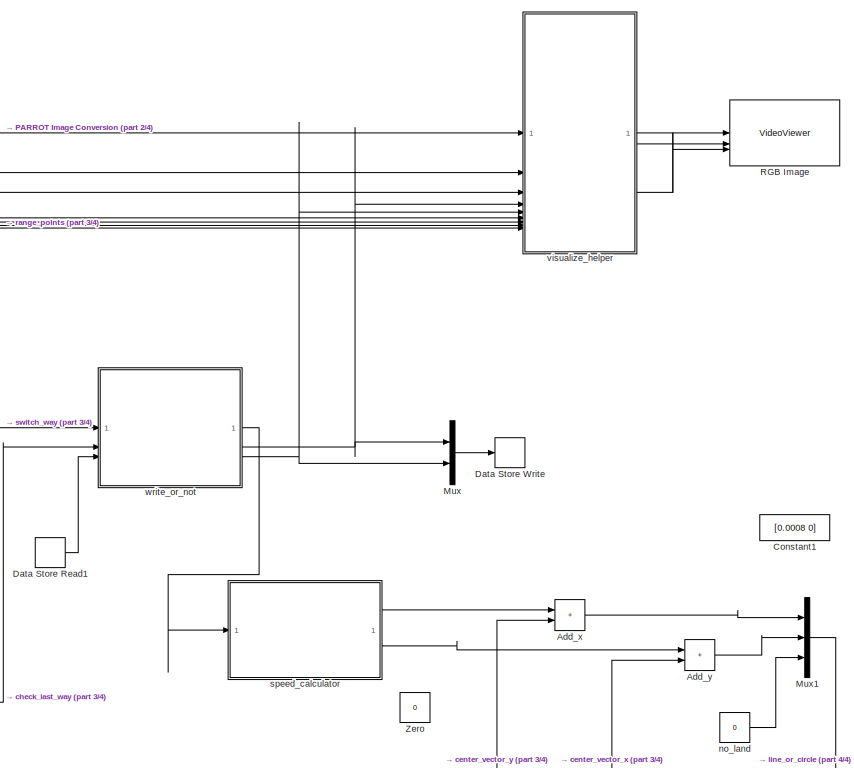
[diagram: root canvas - part 1/4, middle right region]
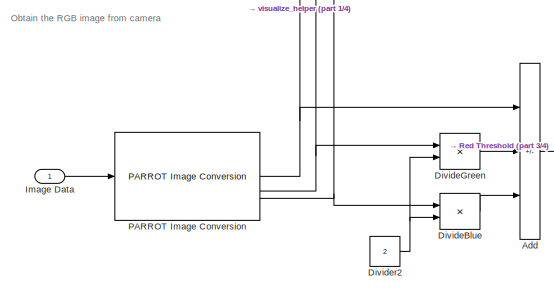
[diagram: root canvas - part 2/4, middle left region]
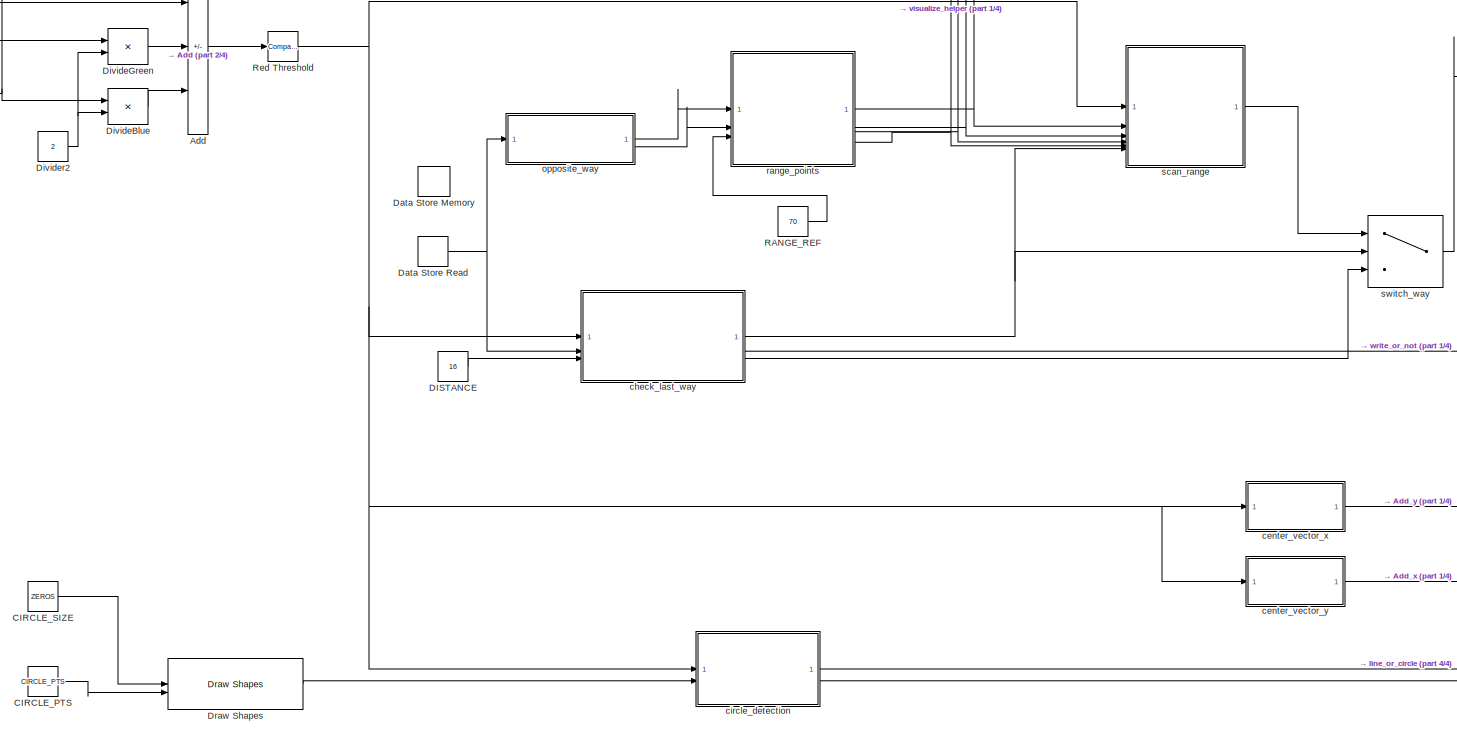
[diagram: root canvas - part 3/4, central region]
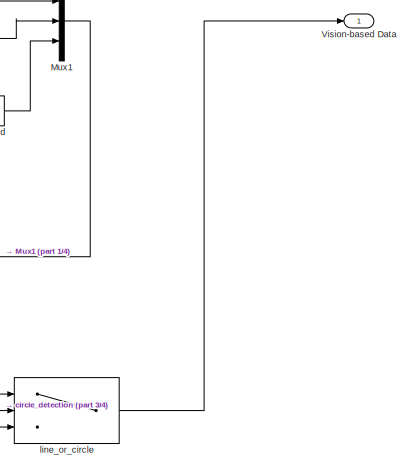
[diagram: root canvas - part 4/4, bottom right region]
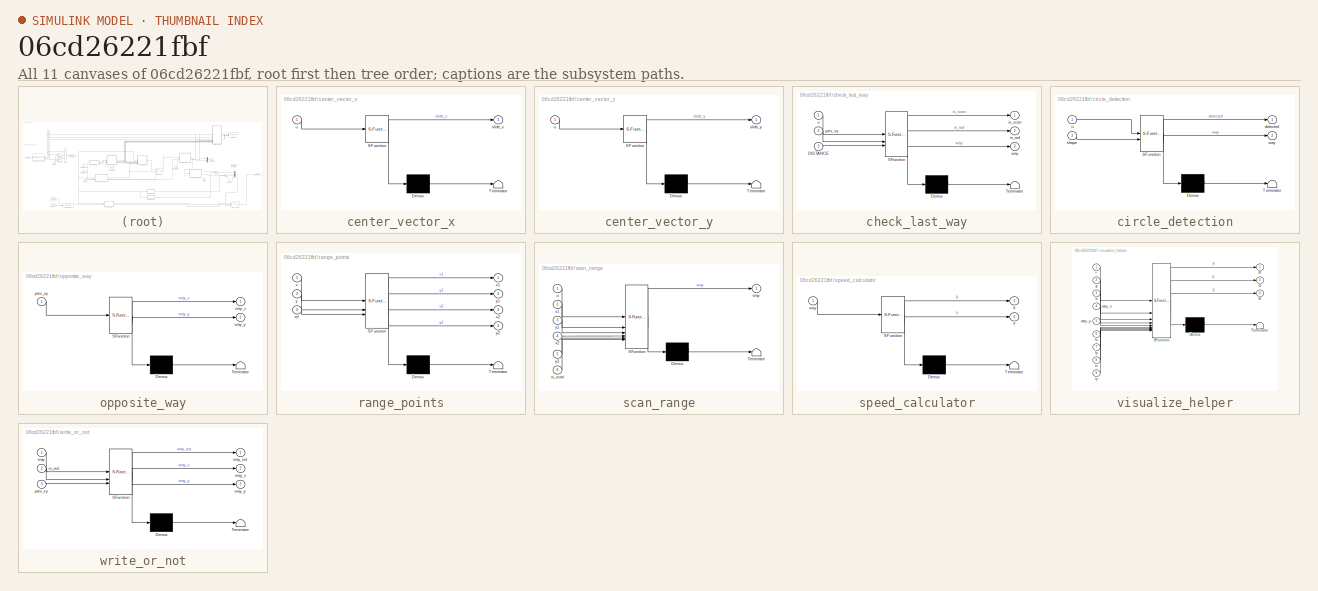
[diagram: thumbnail index - all 11 canvases of the model, root first then tree order]
MODEL slx_06cd26221fbf
KIND model
CONFIG AbsTol = auto
CONFIG EnableMultiTasking = off
CONFIG FixedStep = auto
CONFIG MaxStep = auto
CONFIG MinStep = auto
CONFIG RelTol = 1e-3
CONFIG SampleTimeConstraint = Unconstrained
CONFIG SolverName = VariableStepAuto
CONFIG StartTime = 0.0
CONFIG StopTime = 10.0
BLOCK [Sum] Add
  IconShape = rectangular
  Inputs = +--
BLOCK [Sum] Add_x
  IconShape = rectangular
BLOCK [Sum] Add_y
  IconShape = rectangular
BLOCK [Constant] CIRCLE_PTS
  Value = CIRCLE_PTS
BLOCK [Constant] CIRCLE_SIZE
  Value = ZEROS
BLOCK [Constant] Constant1
  Value = [0.0008 0]
BLOCK [Constant] DISTANCE
  Value = 16
BLOCK [DataStoreMemory] Data Store Memory
  DataStoreName = xy
  InitialValue = [0 0]
  ReadBeforeWriteMsg = warning
  ShowAdditionalParam = off
  WriteAfterReadMsg = warning
  WriteAfterWriteMsg = warning
BLOCK [DataStoreRead] Data Store Read
  DataStoreName = xy
  IndexOptions = Index vector (dialog)
  Indices = 1
  OutputSizes = 1
BLOCK [DataStoreRead] Data Store Read1
  DataStoreName = xy
  IndexOptions = Index vector (dialog)
  Indices = 1
  OutputSizes = 1
BLOCK [DataStoreWrite] Data Store Write
  DataStoreName = xy
  IndexOptions = Index vector (dialog)
  Indices = 1
  OutputSizes = 1
BLOCK [Product] DivideBlue
  Inputs = */
BLOCK [Product] DivideGreen
  Inputs = */
BLOCK [Constant] Divider2
  Value = 2
BLOCK [Reference] Draw Shapes  REF=visiontextngfix/Draw Shapes
  SourceBlock = visiontextngfix/Draw Shapes
  SourceType = Draw Shapes
BLOCK [Inport] Image Data
BLOCK [Mux] Mux
  DisplayOption = bar
  Inputs = 2
BLOCK [Mux] Mux1
  DisplayOption = bar
  Inputs = 3
BLOCK [Reference] PARROT Image Conversion  REF=parrotlib/PARROT Image Conversion
  SourceBlock = parrotlib/PARROT Image Conversion
  SourceType = parrot.ImageProcess
BLOCK [Constant] RANGE_REF
  Value = 70
BLOCK [VideoViewer] RGB Image
  FigPos = [2703.4 754 730.4 526.4]
  ScopeSpecificationString = vipscopes.VideoViewerScopeCfg('CurrentConfiguration', extmgr.ConfigurationSet(extmgr.Configuration('Core','General UI',true),extmgr.Configuration('Core','Source UI',true),extmgr.Configuration('Sources','WiredSimulink',true),extmgr.Configuration('Visuals','Video',true),extmgr.Configuration('Tools','Image Navigation Tools',true,'Magnification',4),extmgr.Configuration('Tools','Image Tool',true),extmg...<+100ch>
  colormapValue = gray(256)
  imagePorts = separate color signals
BLOCK [Reference] Red Threshold  REF=simulink/Logic and Bit
Operations/Compare
To Constant
  SourceBlock = simulink/Logic and Bit\nOperations/Compare\nTo Constant
  SourceType = Compare To Constant
BLOCK [Outport] Vision-based Data
  VectorParamsAs1DForOutWhenUnconnected = off
BLOCK [Constant] Zero
  OutDataTypeStr = Inherit: Inherit via back propagation
  Value = 0
BLOCK [SubSystem] center_vector_x
  ErrorFcn = Stateflow.Translate.translate
  PermitHierarchicalResolution = ExplicitOnly
  SFBlockType = MATLAB Function
  TreatAsAtomicUnit = on
BLOCK [Demux] center_vector_x/ Demux 
  Outputs = 1
BLOCK [S-Function] center_vector_x/ SFunction 
  EnableBusSupport = off
  FunctionName = sf_sfun
  PortCounts = [1 2]
  SFcnIsStateOwnerBlock = off
  SFunctionDeploymentMode = off
  Tag = Stateflow S-Function 7
BLOCK [Terminator] center_vector_x/ Terminator 
BLOCK [Outport] center_vector_x/slide_x
BLOCK [Inport] center_vector_x/u
BLOCK [SubSystem] center_vector_y
  ErrorFcn = Stateflow.Translate.translate
  PermitHierarchicalResolution = ExplicitOnly
  SFBlockType = MATLAB Function
  TreatAsAtomicUnit = on
BLOCK [Demux] center_vector_y/ Demux 
  Outputs = 1
BLOCK [S-Function] center_vector_y/ SFunction 
  EnableBusSupport = off
  FunctionName = sf_sfun
  PortCounts = [1 2]
  SFcnIsStateOwnerBlock = off
  SFunctionDeploymentMode = off
  Tag = Stateflow S-Function 13
BLOCK [Terminator] center_vector_y/ Terminator 
BLOCK [Outport] center_vector_y/slide_y
BLOCK [Inport] center_vector_y/u
BLOCK [SubSystem] check_last_way
  ErrorFcn = Stateflow.Translate.translate
  PermitHierarchicalResolution = ExplicitOnly
  SFBlockType = MATLAB Function
  TreatAsAtomicUnit = on
BLOCK [Demux] check_last_way/ Demux 
  Outputs = 1
BLOCK [S-Function] check_last_way/ SFunction 
  EnableBusSupport = off
  FunctionName = sf_sfun
  PortCounts = [3 4]
  SFcnIsStateOwnerBlock = off
  SFunctionDeploymentMode = off
  Tag = Stateflow S-Function 15
BLOCK [Terminator] check_last_way/ Terminator 
BLOCK [Inport] check_last_way/DISTANCE
  Port = 3
BLOCK [Outport] check_last_way/in_red
  Port = 2
BLOCK [Outport] check_last_way/is_scan
BLOCK [Inport] check_last_way/prev_xy
  Port = 2
BLOCK [Inport] check_last_way/u
BLOCK [Outport] check_last_way/way
  Port = 3
BLOCK [SubSystem] circle_detection
  ErrorFcn = Stateflow.Translate.translate
  PermitHierarchicalResolution = ExplicitOnly
  SFBlockType = MATLAB Function
  TreatAsAtomicUnit = on
BLOCK [Demux] circle_detection/ Demux 
  Outputs = 1
BLOCK [S-Function] circle_detection/ SFunction 
  EnableBusSupport = off
  FunctionName = sf_sfun
  PortCounts = [2 3]
  SFcnIsStateOwnerBlock = off
  SFunctionDeploymentMode = off
  Tag = Stateflow S-Function 16
BLOCK [Terminator] circle_detection/ Terminator 
BLOCK [Outport] circle_detection/detected
BLOCK [Inport] circle_detection/shape
  Port = 2
BLOCK [Inport] circle_detection/u
BLOCK [Outport] circle_detection/way
  Port = 2
BLOCK [Switch] line_or_circle
  Criteria = u2 > Threshold
  InputSameDT = off
  SaturateOnIntegerOverflow = off
BLOCK [Constant] no_land
  Value = 0
BLOCK [SubSystem] opposite_way
  ErrorFcn = Stateflow.Translate.translate
  PermitHierarchicalResolution = ExplicitOnly
  SFBlockType = MATLAB Function
  TreatAsAtomicUnit = on
BLOCK [Demux] opposite_way/ Demux 
  Outputs = 1
BLOCK [S-Function] opposite_way/ SFunction 
  EnableBusSupport = off
  FunctionName = sf_sfun
  PortCounts = [1 3]
  SFcnIsStateOwnerBlock = off
  SFunctionDeploymentMode = off
  Tag = Stateflow S-Function 6
BLOCK [Terminator] opposite_way/ Terminator 
BLOCK [Inport] opposite_way/prev_xy
BLOCK [Outport] opposite_way/way_x
BLOCK [Outport] opposite_way/way_y
  Port = 2
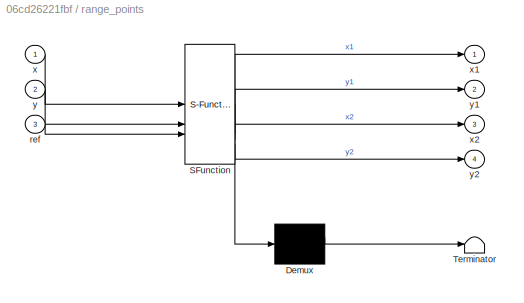
BLOCK [SubSystem] range_points
  ErrorFcn = Stateflow.Translate.translate
  PermitHierarchicalResolution = ExplicitOnly
  SFBlockType = MATLAB Function
  TreatAsAtomicUnit = on
BLOCK [Demux] range_points/ Demux 
  Outputs = 1
BLOCK [S-Function] range_points/ SFunction 
  EnableBusSupport = off
  FunctionName = sf_sfun
  PortCounts = [3 5]
  SFcnIsStateOwnerBlock = off
  SFunctionDeploymentMode = off
  Tag = Stateflow S-Function 8
BLOCK [Terminator] range_points/ Terminator 
BLOCK [Inport] range_points/ref
  Port = 3
BLOCK [Inport] range_points/x
BLOCK [Outport] range_points/x1
BLOCK [Outport] range_points/x2
  Port = 3
BLOCK [Inport] range_points/y
  Port = 2
BLOCK [Outport] range_points/y1
  Port = 2
BLOCK [Outport] range_points/y2
  Port = 4
BLOCK [SubSystem] scan_range
  ErrorFcn = Stateflow.Translate.translate
  PermitHierarchicalResolution = ExplicitOnly
  SFBlockType = MATLAB Function
  TreatAsAtomicUnit = on
BLOCK [Demux] scan_range/ Demux 
  Outputs = 1
BLOCK [S-Function] scan_range/ SFunction 
  EnableBusSupport = off
  FunctionName = sf_sfun
  PortCounts = [6 2]
  SFcnIsStateOwnerBlock = off
  SFunctionDeploymentMode = off
  Tag = Stateflow S-Function 14
BLOCK [Terminator] scan_range/ Terminator 
BLOCK [Inport] scan_range/is_scan
  Port = 6
BLOCK [Inport] scan_range/u
BLOCK [Outport] scan_range/way
BLOCK [Inport] scan_range/x1
  Port = 2
BLOCK [Inport] scan_range/x2
  Port = 4
BLOCK [Inport] scan_range/y1
  Port = 3
BLOCK [Inport] scan_range/y2
  Port = 5
BLOCK [SubSystem] speed_calculator
  ErrorFcn = Stateflow.Translate.translate
  PermitHierarchicalResolution = ExplicitOnly
  SFBlockType = MATLAB Function
  TreatAsAtomicUnit = on
BLOCK [Demux] speed_calculator/ Demux 
  Outputs = 1
BLOCK [S-Function] speed_calculator/ SFunction 
  EnableBusSupport = off
  FunctionName = sf_sfun
  PortCounts = [1 3]
  SFcnIsStateOwnerBlock = off
  SFunctionDeploymentMode = off
  Tag = Stateflow S-Function 4
BLOCK [Terminator] speed_calculator/ Terminator 
BLOCK [Outport] speed_calculator/X
BLOCK [Outport] speed_calculator/Y
  Port = 2
BLOCK [Inport] speed_calculator/way
BLOCK [Switch] switch_way
  Criteria = u2 > Threshold
  InputSameDT = off
  SaturateOnIntegerOverflow = off
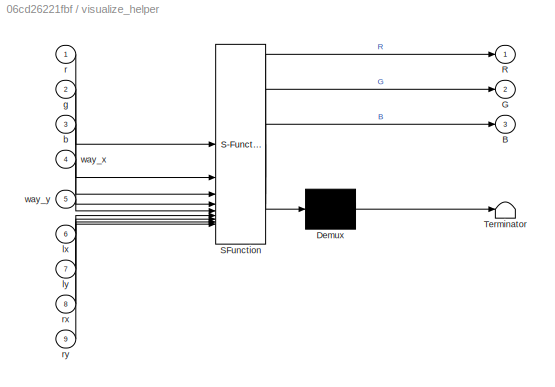
BLOCK [SubSystem] visualize_helper
  ErrorFcn = Stateflow.Translate.translate
  PermitHierarchicalResolution = ExplicitOnly
  SFBlockType = MATLAB Function
  TreatAsAtomicUnit = on
BLOCK [Demux] visualize_helper/ Demux 
  Outputs = 1
BLOCK [S-Function] visualize_helper/ SFunction 
  EnableBusSupport = off
  FunctionName = sf_sfun
  PortCounts = [9 4]
  SFcnIsStateOwnerBlock = off
  SFunctionDeploymentMode = off
  Tag = Stateflow S-Function 17
BLOCK [Terminator] visualize_helper/ Terminator 
BLOCK [Outport] visualize_helper/B
  Port = 3
BLOCK [Outport] visualize_helper/G
  Port = 2
BLOCK [Outport] visualize_helper/R
BLOCK [Inport] visualize_helper/b
  Port = 3
BLOCK [Inport] visualize_helper/g
  Port = 2
BLOCK [Inport] visualize_helper/lx
  Port = 6
BLOCK [Inport] visualize_helper/ly
  Port = 7
BLOCK [Inport] visualize_helper/r
BLOCK [Inport] visualize_helper/rx
  Port = 8
BLOCK [Inport] visualize_helper/ry
  Port = 9
BLOCK [Inport] visualize_helper/way_x
  Port = 4
BLOCK [Inport] visualize_helper/way_y
  Port = 5
BLOCK [SubSystem] write_or_not
  ErrorFcn = Stateflow.Translate.translate
  PermitHierarchicalResolution = ExplicitOnly
  SFBlockType = MATLAB Function
  TreatAsAtomicUnit = on
BLOCK [Demux] write_or_not/ Demux 
  Outputs = 1
BLOCK [S-Function] write_or_not/ SFunction 
  EnableBusSupport = off
  FunctionName = sf_sfun
  PortCounts = [3 4]
  SFcnIsStateOwnerBlock = off
  SFunctionDeploymentMode = off
  Tag = Stateflow S-Function 19
BLOCK [Terminator] write_or_not/ Terminator 
BLOCK [Inport] write_or_not/in_red
  Port = 2
BLOCK [Inport] write_or_not/prev_xy
  Port = 3
BLOCK [Inport] write_or_not/way
BLOCK [Outport] write_or_not/way_out
BLOCK [Outport] write_or_not/way_x
  Port = 2
BLOCK [Outport] write_or_not/way_y
  Port = 3
ANNOTATION (root): Obtain the RGB image from camera
LINE Add:1 -> Red Threshold:1
LINE Add_x:1 -> Mux1:1
LINE Add_y:1 -> Mux1:2
LINE CIRCLE_PTS:1 -> Draw Shapes:2
LINE CIRCLE_SIZE:1 -> Draw Shapes:1
LINE DISTANCE:1 -> check_last_way:3
LINE Data Store Read1:1 -> write_or_not:3
NET Data Store Read:1 -> check_last_way:2, opposite_way:1
LINE DivideBlue:1 -> Add:3
LINE DivideGreen:1 -> Add:2
NET Divider2:1 -> DivideBlue:2, DivideGreen:2
LINE Draw Shapes:1 -> circle_detection:2
LINE Image Data:1 -> PARROT Image Conversion:1
LINE Mux1:1 -> line_or_circle:3
LINE Mux:1 -> Data Store Write:1
NET PARROT Image Conversion:1 -> Add:1, visualize_helper:1
NET PARROT Image Conversion:2 -> DivideGreen:1, visualize_helper:2
NET PARROT Image Conversion:3 -> DivideBlue:1, visualize_helper:3
LINE RANGE_REF:1 -> range_points:3
NET Red Threshold:1 -> center_vector_x:1, center_vector_y:1, check_last_way:1, circle_detection:1, scan_range:1
LINE center_vector_x:1 -> Add_y:2
LINE center_vector_y:1 -> Add_x:2
NET check_last_way:1 -> scan_range:6, switch_way:2
LINE check_last_way:2 -> write_or_not:2
LINE check_last_way:3 -> switch_way:3
LINE circle_detection:1 -> line_or_circle:2
LINE circle_detection:2 -> line_or_circle:1
LINE line_or_circle:1 -> Vision-based Data:1
LINE no_land:1 -> Mux1:3
LINE opposite_way:1 -> range_points:1
LINE opposite_way:2 -> range_points:2
NET range_points:1 -> scan_range:2, visualize_helper:6
NET range_points:2 -> scan_range:3, visualize_helper:7
NET range_points:3 -> scan_range:4, visualize_helper:8
NET range_points:4 -> scan_range:5, visualize_helper:9
LINE scan_range:1 -> switch_way:1
LINE speed_calculator:1 -> Add_x:1
LINE speed_calculator:2 -> Add_y:1
LINE switch_way:1 -> write_or_not:1
LINE visualize_helper:1 -> RGB Image:1
LINE visualize_helper:2 -> RGB Image:2
LINE visualize_helper:3 -> RGB Image:3
LINE write_or_not:1 -> speed_calculator:1
NET write_or_not:2 -> Mux:1, visualize_helper:4
NET write_or_not:3 -> Mux:2, visualize_helper:5
note: NET lines group one-source signal fan-out (src -> all destinations, sorted); 1:1 wires keep LINE
CHART write_or_not states=1 transitions=1
  STATE_LABEL 'eML_blk_kernel()'
  STATE_LABEL "SCRIPT:\nfunction [way_out, way_x, way_y] = fcn(way, in_red, prev_xy)\n\nx = way(1);\ny = way(2);\nspeed = way(3);\n\nif in_red\n    X = x;   Y = y;\n    way_x = x;  way_y = y;\nelse\n    X = x;  Y = y; \n    way_x = prev_xy(1);  \n    way_y = prev_xy(2);\nend\n\nway_out = [X Y speed];\n\n%fprintf('X = %f | Y = %f\\n', way_x, way_y);\nend\n"
CHART speed_calculator states=1 transitions=1
  STATE_LABEL 'eML_blk_kernel()'
  STATE_LABEL "SCRIPT:\nfunction [X,Y] = fcn(way)\n\nx = way(1);\ny = way(2);\nspeed = way(3);\n\nif speed == 100\n    speed = 200;\nelseif speed < 60\n    speed = 60;\nend\n\n\nX = (60-x) / 10000000 * speed;\nY = (y-80) / 10000000 * speed;\n\n\n%fprintf(' --- speed: %f | ', speed); fprintf('vectors: X=%.5f | Y=%.5f\\n', X, Y);\n\nend\n"
CHART opposite_way states=1 transitions=1
  STATE_LABEL 'eML_blk_kernel()'
  STATE_LABEL "SCRIPT:\nfunction [way_x, way_y] = fcn(prev_xy)\n\n    x = prev_xy(1);\n    y = prev_xy(2);\n    \n    if x == 0 || y == 0\n        way_x = 0;\n        way_y = 0;\n    else\n        way_x = 60 + (60 - x) + 1;\n        way_y = 80 + (80 - y) + 1;\n    end\n\n    %fprintf('opposite: %.0f %.0f -> %.0f %.0f\\n', x, y, way_x, way_y);\nend"
CHART center_vector_x states=1 transitions=1
  STATE_LABEL 'eML_blk_kernel()'
  STATE_LABEL 'SCRIPT:\nfunction slide_x = fcn(u)\nc1 = 60; \nc2 = 80;\nleft_p = 0;\nright_p = 0;\nmiddle_point = u(c1, c2);\ncompare = ~middle_point;\nfor i = c2:-1:60 % <---  look left\n    if u(c1, i) == compare\n        left_p = i;\n        break\n    end\nend\nfor i = c2:100 % --->   look right\n    if u(c1, i) == compare\n        right_p = i;\n        break\n    end\nend\n\nslide_x = 0;\nif left_p ~= 0 && right_p ~= 0 % in line...<+717ch>'
CHART range_points states=1 transitions=1
  STATE_LABEL 'eML_blk_kernel()'
  STATE_LABEL 'SCRIPT:\nfunction [x1,y1, x2,y2] = get_range_points(x,y, ref)\n\n% x1, y1 are left\n% x2, y2 are right \n% according to center-to-edge vector.\n\nW = edge_number(x,y);\n\nif W == 1\n    y1 = y - ref;\n    if y1 < 1\n        x1 = x - y1;\n        y1 = 1;\n    else\n        x1 = x;\n    end\n\n    y2 = y + ref;\n    if y2 > 160\n        x2 = y2-160;\n        y2 = 160;\n    else\n        x2 = x;\n    end\nelseif W == 2\n    x...<+804ch>'
CHART center_vector_y states=1 transitions=1
  STATE_LABEL 'eML_blk_kernel()'
  STATE_LABEL 'SCRIPT:\nfunction slide_y = fcn(u)\nc1 = 60; \nc2 = 80;\nup_p = 0;\ndown_p = 0;\nmiddle_point = u(c1,c2);\ncompare = ~middle_point;\nfor i = c1:-1:40 % look up\n    if u(i, c2) == compare\n        up_p = i;\n        break\n    end\nend\nfor i = c1:80 % look down\n    if u(i, c2) == compare\n        down_p = i;\n        break\n    end\nend\nslide_y = 0;\nif up_p ~= 0 && down_p ~= 0  % in line\n    if middle_point == 1\n ...<+693ch>'
CHART scan_range states=1 transitions=1
  STATE_LABEL 'eML_blk_kernel()'
  STATE_LABEL 'SCRIPT:\nfunction way  = scan_range(u, x1,y1, x2,y2, is_scan)\n\nway_x = 1;\nway_y = 2;\nspeed = 0;\nin_red_line = u(60, 80);\n\n\npersistent prev_endless_x;\npersistent prev_endless_y;\n\nif is_scan\n    if in_red_line == 1  % ------ inside red-line ------\n    \n        t = 0;\n        mx = 0;\n\n        mx_endless_x = [0 0];\n        mx_endless_y = [0 0];\n        mx_t = [0 0];\n\n        last_endless = false;\n     ...<+3608ch>'
CHART check_last_way states=1 transitions=1
  STATE_LABEL 'eML_blk_kernel()'
  STATE_LABEL 'SCRIPT:\nfunction [is_scan, in_red, way]  = fcn(u, prev_xy, DISTANCE)\n\nprev_x = prev_xy(1);\nprev_y = prev_xy(2);\n\nin_red = u(60, 80);\ncompare = ~in_red;\n\nis_scan = 0;\nway_x = 1;\nway_y = 1;\nspeed = 0;\n\nif prev_x == 0 || prev_y == 0\n    is_scan = 1;\nelse \n    if u(prev_x, prev_y) == 1 \n\n        % endless continue ------------------------------\n        [ref_x, ref_y] = middle_point_of_endless_line(u, ...<+3608ch>'
CHART circle_detection states=1 transitions=1
  STATE_LABEL 'eML_blk_kernel()'
  STATE_LABEL 'SCRIPT:\nfunction [detected, way] = fcn(u, shape)\n\npersistent landing;\nif isempty(landing)\n    landing = 0;\nend\n\ndetected = 0;\nway = [0 0 0];\nland = 0;\n\nif landing == 1\n    way = [0 0 1];\n    detected = 1;\n\nelse\n    [total_pixel, cord_x, cord_y] = detect_circle(u, shape);\n    \n    if total_pixel >= 1350\n        detected = 1;\n        center_x = cord_x + 19;\n        center_y = cord_y + 19;\n    \n     ...<+1213ch>'
CHART visualize_helper states=1 transitions=1
  STATE_LABEL 'eML_blk_kernel()'
  STATE_LABEL 'SCRIPT:\nfunction [R,G,B] = fcn(r,g,b, way_x, way_y,  lx,ly, rx,ry)\n\n% completely unnecessary block for algorithm, just for visualize\n\nr(60,80) = 255; g(60,80) = 255; b(60,80) = 255;\n\nif way_x >= 1 && way_y >= 1 && way_x <= 120 && way_y <= 160\n\n\n% -----------------------------------------------\n    x1 = 60; y1 = 80;  x2 = way_x;   y2 = way_y;\n    swapepd = 0;\n    if abs(y2 - y1) > abs(x2 - x1)\n    ...<+2702ch>'
CHART  states=0 transitions=0
CHART  states=0 transitions=0
CHART  states=0 transitions=0
CHART  states=0 transitions=0
CHART  states=0 transitions=0
CHART  states=0 transitions=0
CHART  states=0 transitions=0
CHART  states=0 transitions=0
CHART  states=0 transitions=0
CHART  states=0 transitions=0
